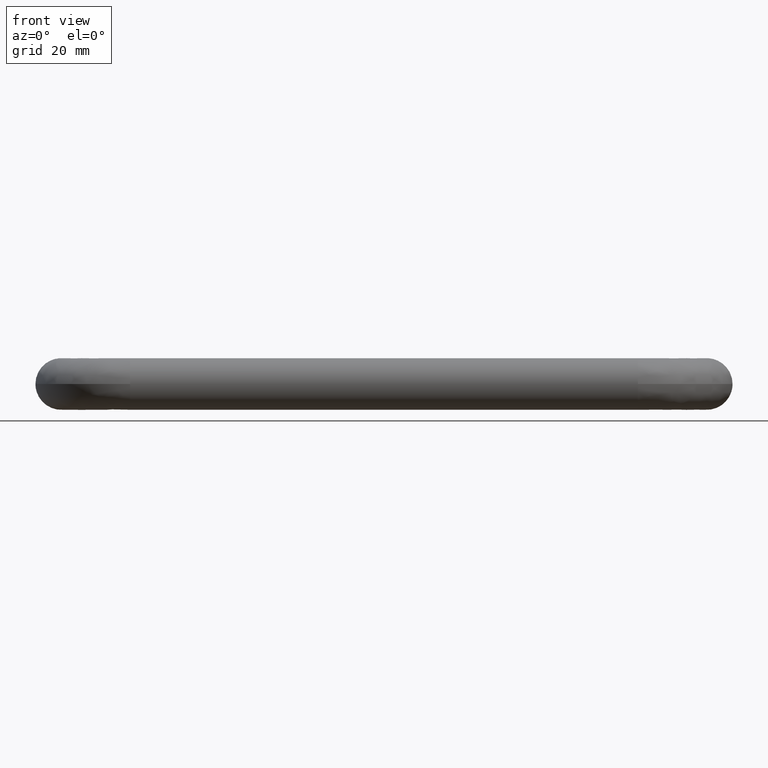
[diagram: clean part render]
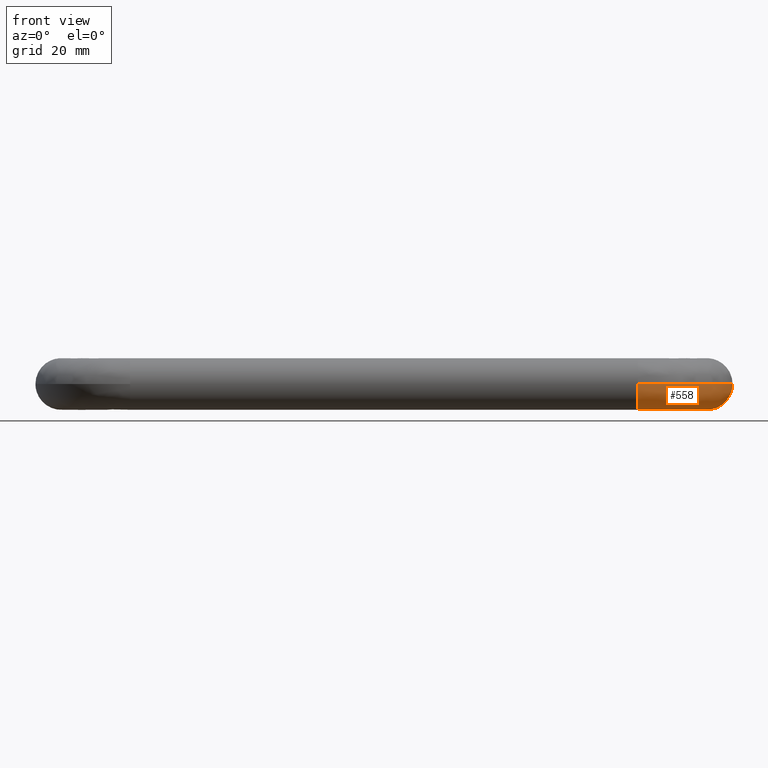
[diagram: same view with one face highlighted and labeled with its STEP entity id]
A machine part, front view. The second image highlights one B-rep face of the part: STEP entity #558.
In plain terms, the highlighted face is a freeform B-spline surface patch.
Its self-contained STEP definition (entity closure, byte-faithful):
#295=CARTESIAN_POINT('',(144.0,-28.000000000368381,-4.420586E-016));
#296=VERTEX_POINT('',#295);
#297=CARTESIAN_POINT('',(149.529245425400600,-27.999987601051860,-5.981504002381076));
#298=VERTEX_POINT('',#297);
#299=CARTESIAN_POINT('',(144.0,-28.000000000368381,-4.420586E-016));
#300=CARTESIAN_POINT('',(144.000000000000030,-28.000000000368388,-5.546342949747148));
#301=CARTESIAN_POINT('',(149.529245425400520,-27.999987601051870,-5.981504002381668));
#309=(BOUNDED_CURVE()B_SPLINE_CURVE(2,(#299,#300,#301),.UNSPECIFIED.,.F.,.U.)B_SPLINE_CURVE_WITH_KNOTS((3,3),(0.0,0.472662601253080),.UNSPECIFIED.)CURVE()GEOMETRIC_REPRESENTATION_ITEM()RATIONAL_B_SPLINE_CURVE((1.0,0.723120658612492,0.969723356158820))REPRESENTATION_ITEM(''));
#310=EDGE_CURVE('',#296,#298,#309,.T.);
#362=CARTESIAN_POINT('',(155.999999999967090,-27.999973090403870,-7.347638E-016));
#363=VERTEX_POINT('',#362);
#364=CARTESIAN_POINT('',(149.529245425400520,-27.999987601051860,-5.981504002381076));
#365=CARTESIAN_POINT('',(149.764259357829050,-27.999987074033822,-6.000000000000001));
#366=CARTESIAN_POINT('',(149.999999999983490,-27.999986545386129,-6.000000000000001));
#367=CARTESIAN_POINT('',(155.999999999967170,-27.999973090403870,-6.000000000000003));
#368=CARTESIAN_POINT('',(155.999999999967090,-27.999973090403870,-7.347638E-016));
#376=(BOUNDED_CURVE()B_SPLINE_CURVE(2,(#364,#365,#366,#367,#368),.UNSPECIFIED.,.F.,.U.)B_SPLINE_CURVE_WITH_KNOTS((3,2,3),(0.472662601253080,0.500000000000000,1.0),.UNSPECIFIED.)CURVE()GEOMETRIC_REPRESENTATION_ITEM()RATIONAL_B_SPLINE_CURVE((0.969723356158820,0.983986122574055,1.0,0.707106781186548,1.0))REPRESENTATION_ITEM(''));
#377=EDGE_CURVE('',#298,#363,#376,.T.);
#428=CARTESIAN_POINT('',(133.999973486176490,-49.999999999968040,-7.347638E-016));
#429=VERTEX_POINT('',#428);
#430=CARTESIAN_POINT('',(133.999973486176510,-49.999999999968033,-7.347638E-016));
#431=CARTESIAN_POINT('',(156.000026909636770,-50.000026513863915,-7.347638E-016));
#432=CARTESIAN_POINT('',(155.999999999967090,-27.999973090403863,-7.347638E-016));
#440=(BOUNDED_CURVE()B_SPLINE_CURVE(2,(#430,#431,#432),.UNSPECIFIED.,.F.,.U.)B_SPLINE_CURVE_WITH_KNOTS((3,3),(-1.734752043948219,-0.265247937358810),.UNSPECIFIED.)CURVE()GEOMETRIC_REPRESENTATION_ITEM()RATIONAL_B_SPLINE_CURVE((0.889030167379974,0.628638499101433,0.889030174004650))REPRESENTATION_ITEM(''));
#441=EDGE_CURVE('',#429,#363,#440,.T.);
#445=CARTESIAN_POINT('',(134.000000000131590,-38.0,-2.210293E-016));
#446=VERTEX_POINT('',#445);
#447=CARTESIAN_POINT('',(134.000000000131620,-37.999999999999993,-8.841173E-016));
#448=CARTESIAN_POINT('',(143.999999999631630,-37.999999999868358,-8.689584E-016));
#449=CARTESIAN_POINT('',(144.0,-28.000000000368374,-8.841173E-016));
#457=(BOUNDED_CURVE()B_SPLINE_CURVE(2,(#447,#448,#449),.UNSPECIFIED.,.F.,.U.)B_SPLINE_CURVE_WITH_KNOTS((3,3),(-1.734750791644724,-0.265249208379877),.UNSPECIFIED.)CURVE()GEOMETRIC_REPRESENTATION_ITEM()RATIONAL_B_SPLINE_CURVE((0.889029723571595,0.628638946226510,0.889029723562876))REPRESENTATION_ITEM(''));
#458=EDGE_CURVE('',#446,#296,#457,.T.);
#493=CARTESIAN_POINT('',(133.304615605653480,-37.975792727603114,0.167740426151145));
#494=CARTESIAN_POINT('',(144.775387936503560,-38.775387936503563,0.167740426151145));
#495=CARTESIAN_POINT('',(143.975792727603110,-27.304615605653449,0.167740426151145));
#496=CARTESIAN_POINT('',(133.304615605653420,-37.975792727603107,0.084358652198837));
#497=CARTESIAN_POINT('',(144.775387936503560,-38.775387936503556,0.084358652198837));
#498=CARTESIAN_POINT('',(143.975792727603110,-27.304615605653453,0.084358652198837));
#499=CARTESIAN_POINT('',(133.304615605653450,-37.975792727603107,-5.999999999999997));
#500=CARTESIAN_POINT('',(144.775387936503590,-38.775387936503549,-5.999999999999999));
#501=CARTESIAN_POINT('',(143.975792727603110,-27.304615605653442,-5.999999999999998));
#502=CARTESIAN_POINT('',(132.887384969045510,-43.961268364164987,-5.999999999999998));
#503=CARTESIAN_POINT('',(151.240620698405680,-45.240620698405699,-5.999999999999998));
#504=CARTESIAN_POINT('',(149.961268364164990,-26.887384969045527,-5.999999999999999));
#505=CARTESIAN_POINT('',(132.470154332437570,-49.946744000726852,-5.999999999999997));
#506=CARTESIAN_POINT('',(157.705853460307820,-51.705853460307814,-5.999999999999999));
#507=CARTESIAN_POINT('',(155.946744000726910,-26.470154332437588,-5.999999999999998));
#508=CARTESIAN_POINT('',(132.470154332437630,-49.946744000726845,0.084358652198840));
#509=CARTESIAN_POINT('',(157.705853460307850,-51.705853460307829,0.084358652198840));
#510=CARTESIAN_POINT('',(155.946744000726820,-26.470154332437588,0.084358652198840));
#511=CARTESIAN_POINT('',(132.470154332437600,-49.946744000726859,0.167740426151150));
#512=CARTESIAN_POINT('',(157.705853460307820,-51.705853460307821,0.167740426151149));
#513=CARTESIAN_POINT('',(155.946744000726880,-26.470154332437591,0.167740426151150));
#521=(BOUNDED_SURFACE()B_SPLINE_SURFACE(2,2,((#493,#496,#499,#502,#505,#508,#511),(#494,#497,#500,#503,#506,#509,#512),(#495,#498,#501,#504,#507,#510,#513)),.UNSPECIFIED.,.F.,.F.,.U.)B_SPLINE_SURFACE_WITH_KNOTS((3,3),(3,1,2,1,3),(0.0,40.092296910875270),(0.0,0.198822509939081,10.139948006893359,20.081073503847641,20.279896013786729),.UNSPECIFIED.)GEOMETRIC_REPRESENTATION_ITEM()RATIONAL_B_SPLINE_SURFACE(((0.927078278878389,0.921710467872277,0.647952106560563,0.916342656866165,0.647952106560563,0.921710467872278,0.927078278878390),(0.608370985386885,0.604848499157232,0.425201701444961,0.601326012927580,0.425201701444961,0.604848499157232,0.608370985386885),(0.927078278878389,0.921710467872277,0.647952106560563,0.916342656866165,0.647952106560563,0.921710467872278,0.927078278878390)))REPRESENTATION_ITEM('')SURFACE());
#522=ORIENTED_EDGE('',*,*,#441,.F.);
#523=CARTESIAN_POINT('',(133.999987783284500,-43.529245425400553,-5.981504002381058));
#524=VERTEX_POINT('',#523);
#525=CARTESIAN_POINT('',(133.999987783284470,-43.529245425400539,-5.981504002381058));
#526=CARTESIAN_POINT('',(133.999987264022110,-43.764259357829282,-6.000000000000001));
#527=CARTESIAN_POINT('',(133.999986743154010,-43.999999999984020,-6.000000000000001));
#528=CARTESIAN_POINT('',(133.999973486176510,-49.999999999968047,-6.000000000000003));
#529=CARTESIAN_POINT('',(133.999973486176490,-49.999999999968040,-7.347638E-016));
#537=(BOUNDED_CURVE()B_SPLINE_CURVE(2,(#525,#526,#527,#528,#529),.UNSPECIFIED.,.F.,.U.)B_SPLINE_CURVE_WITH_KNOTS((3,2,3),(0.472662601253055,0.500000000000000,1.0),.UNSPECIFIED.)CURVE()GEOMETRIC_REPRESENTATION_ITEM()RATIONAL_B_SPLINE_CURVE((0.969723356158795,0.983986122574041,1.0,0.707106781186548,1.0))REPRESENTATION_ITEM(''));
#538=EDGE_CURVE('',#524,#429,#537,.T.);
#539=ORIENTED_EDGE('',*,*,#538,.F.);
#540=CARTESIAN_POINT('',(134.000000000131590,-38.0,-2.210293E-016));
#541=CARTESIAN_POINT('',(134.000000000131620,-37.999999999999993,-5.546342949746755));
#542=CARTESIAN_POINT('',(133.999987783284550,-43.529245425400489,-5.981504002381636));
#550=(BOUNDED_CURVE()B_SPLINE_CURVE(2,(#540,#541,#542),.UNSPECIFIED.,.F.,.U.)B_SPLINE_CURVE_WITH_KNOTS((3,3),(0.0,0.472662601253055),.UNSPECIFIED.)CURVE()GEOMETRIC_REPRESENTATION_ITEM()RATIONAL_B_SPLINE_CURVE((1.0,0.723120658612506,0.969723356158795))REPRESENTATION_ITEM(''));
#551=EDGE_CURVE('',#446,#524,#550,.T.);
#552=ORIENTED_EDGE('',*,*,#551,.F.);
#553=ORIENTED_EDGE('',*,*,#458,.T.);
#554=ORIENTED_EDGE('',*,*,#310,.T.);
#555=ORIENTED_EDGE('',*,*,#377,.T.);
#556=EDGE_LOOP('',(#522,#539,#552,#553,#554,#555));
#557=FACE_OUTER_BOUND('',#556,.T.);
#558=ADVANCED_FACE('',(#557),#521,.T.);